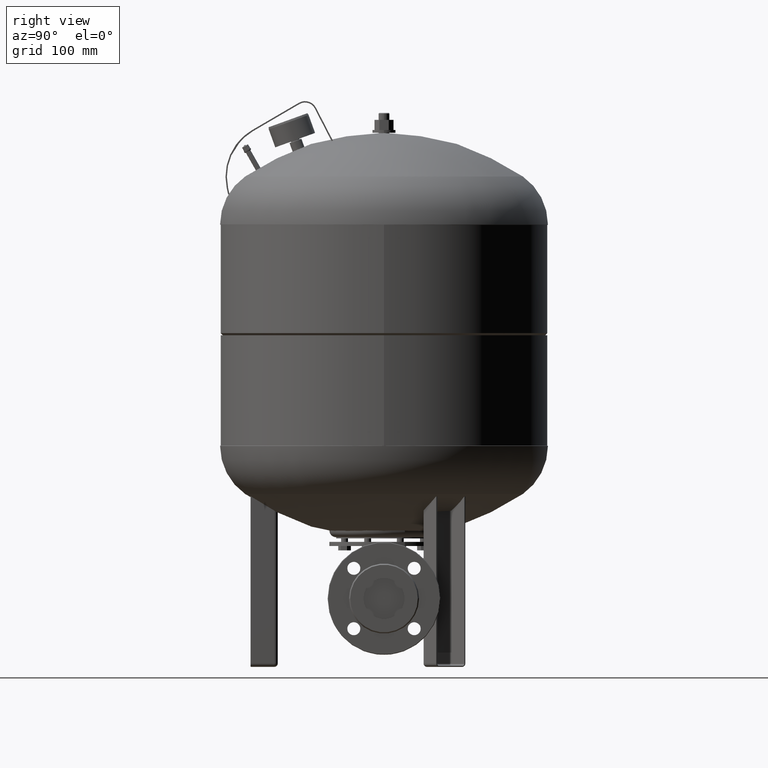
[diagram: clean part render]
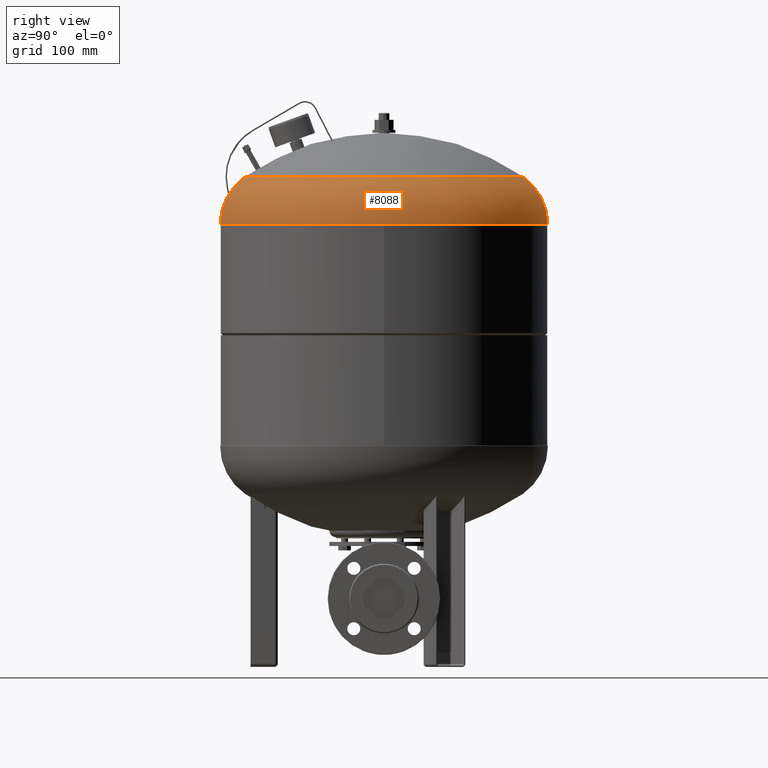
[diagram: same view with one face highlighted and labeled with its STEP entity id]
A machine part, right view. The second image highlights one B-rep face of the part: STEP entity #8088.
In plain terms, the highlighted toroidal blend (fillet) surface has major radius 154 mm and minor (blend) radius 86 mm.
Its self-contained STEP definition (entity closure, byte-faithful):
#7974=CARTESIAN_POINT('',(240.0,-1.299437E-014,647.446016103952270));
#7975=VERTEX_POINT('',#7974);
#7982=CARTESIAN_POINT('',(-3.818310E-014,-239.999999999999970,647.446016103952160));
#7983=VERTEX_POINT('',#7982);
#7984=CARTESIAN_POINT('',(2.963866E-017,1.639618E-014,647.446016103952270));
#7985=DIRECTION('',(0.0,0.0,-1.0));
#7986=DIRECTION('',(-1.0,0.0,0.0));
#7987=AXIS2_PLACEMENT_3D('',#7984,#7985,#7986);
#7988=CIRCLE('',#7987,240.0);
#7989=EDGE_CURVE('',#7975,#7983,#7988,.T.);
#8006=CARTESIAN_POINT('',(-8.792549E-015,240.000000000000030,647.446016103952390));
#8007=VERTEX_POINT('',#8006);
#8008=CARTESIAN_POINT('',(-4.111121E-015,203.325884543761560,717.894274520860560));
#8009=VERTEX_POINT('',#8008);
#8010=CARTESIAN_POINT('',(-8.792549E-015,154.0,647.446016103952270));
#8011=DIRECTION('',(1.0,0.0,0.0));
#8012=DIRECTION('',(0.0,1.0,0.0));
#8013=AXIS2_PLACEMENT_3D('',#8010,#8011,#8012);
#8014=CIRCLE('',#8013,86.0);
#8015=EDGE_CURVE('',#8007,#8009,#8014,.T.);
#8025=CARTESIAN_POINT('',(-2.901054E-014,-203.325884543761560,717.894274520860340));
#8026=VERTEX_POINT('',#8025);
#8027=CARTESIAN_POINT('',(-2.765149E-014,-153.999999999999940,647.446016103952050));
#8028=DIRECTION('',(-1.0,0.0,0.0));
#8029=DIRECTION('',(0.0,-1.0,0.0));
#8030=AXIS2_PLACEMENT_3D('',#8027,#8028,#8029);
#8031=CIRCLE('',#8030,86.0);
#8032=EDGE_CURVE('',#7983,#8026,#8031,.T.);
#8060=CARTESIAN_POINT('',(4.711066E-015,-5.172380E-015,717.894274520860450));
#8061=DIRECTION('',(0.0,0.0,-1.0));
#8062=DIRECTION('',(-1.0,0.0,0.0));
#8063=AXIS2_PLACEMENT_3D('',#8060,#8061,#8062);
#8064=CIRCLE('',#8063,203.325884543761560);
#8065=EDGE_CURVE('',#8009,#8026,#8064,.T.);
#8070=CARTESIAN_POINT('',(-8.792549E-015,1.639618E-014,647.446016103952160));
#8071=DIRECTION('',(-6.645200E-017,3.061617E-016,-1.0));
#8072=DIRECTION('',(0.0,1.0,0.0));
#8073=AXIS2_PLACEMENT_3D('',#8070,#8071,#8072);
#8074=TOROIDAL_SURFACE('',#8073,153.999999999999970,86.0);
#8075=ORIENTED_EDGE('',*,*,#8015,.T.);
#8076=ORIENTED_EDGE('',*,*,#8065,.T.);
#8077=ORIENTED_EDGE('',*,*,#8032,.F.);
#8078=ORIENTED_EDGE('',*,*,#7989,.F.);
#8079=CARTESIAN_POINT('',(2.963866E-017,1.639618E-014,647.446016103952270));
#8080=DIRECTION('',(0.0,0.0,-1.0));
#8081=DIRECTION('',(-1.0,0.0,0.0));
#8082=AXIS2_PLACEMENT_3D('',#8079,#8080,#8081);
#8083=CIRCLE('',#8082,240.0);
#8084=EDGE_CURVE('',#8007,#7975,#8083,.T.);
#8085=ORIENTED_EDGE('',*,*,#8084,.F.);
#8086=EDGE_LOOP('',(#8075,#8076,#8077,#8078,#8085));
#8087=FACE_OUTER_BOUND('',#8086,.T.);
#8088=ADVANCED_FACE('',(#8087),#8074,.T.);